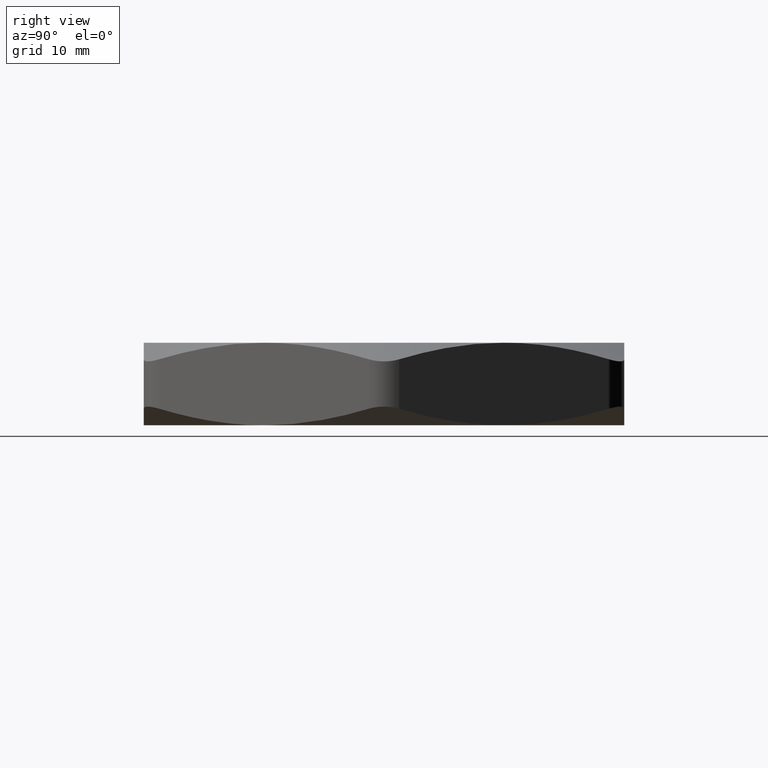
[diagram: clean part render]
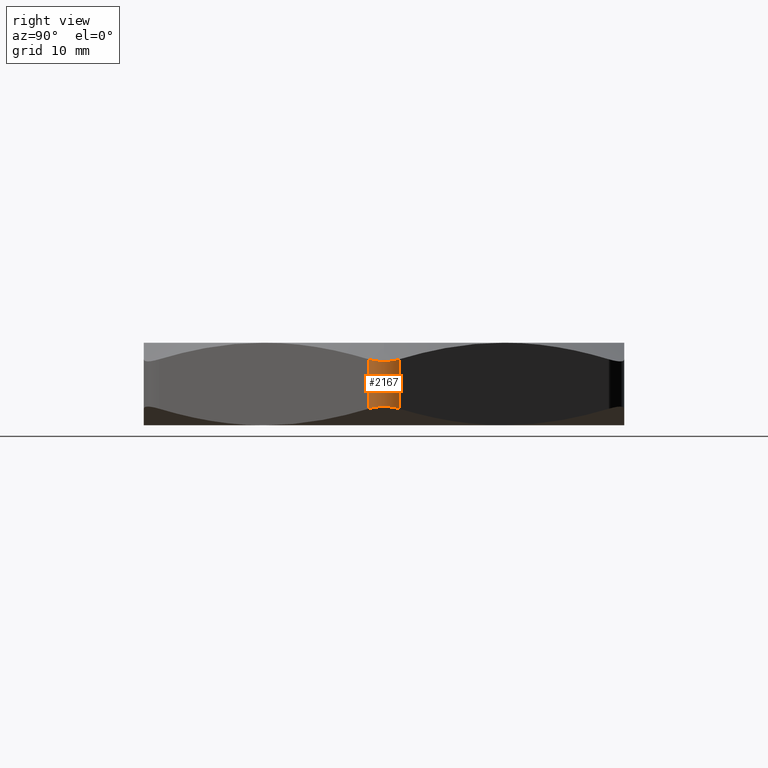
[diagram: same view with one face highlighted and labeled with its STEP entity id]
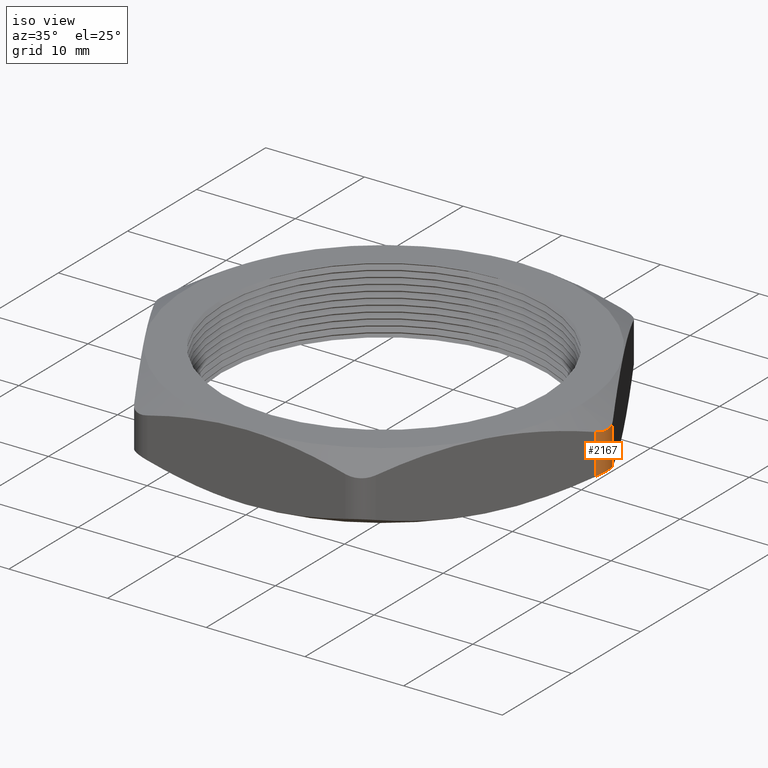
[diagram: same view with one face highlighted and labeled with its STEP entity id]
A machine part, right view. The second image highlights one B-rep face of the part: STEP entity #2167.
A second angle (iso view) of the same face is appended — the face is thin or edge-on in the first view.
In plain terms, the highlighted cylindrical surface (edge-blend (fillet) strip) has radius 2.54 mm, axis along (0, 0, -1).
Its self-contained STEP definition (entity closure, byte-faithful):
#210 = VERTEX_POINT ( 'NONE', #700 ) ;
#700 = CARTESIAN_POINT ( 'NONE',  ( 0.8775724091682313200, 0.05000000000000044000, 0.2157315925363599000 ) ) ;
#973 = DIRECTION ( 'NONE',  ( -1.000000000000000000, 0.0000000000000000000, 0.0000000000000000000 ) ) ;
#974 = DIRECTION ( 'NONE',  ( 0.0000000000000000000, 0.0000000000000000000, -1.000000000000000000 ) ) ;
#975 = AXIS2_PLACEMENT_3D ( 'NONE', #982, #974, #973 ) ;
#977 = CYLINDRICAL_SURFACE ( 'NONE', #975, 0.1000000000000000200 ) ;
#978 = FACE_OUTER_BOUND ( 'NONE', #2166, .T. ) ;
#982 = CARTESIAN_POINT ( 'NONE',  ( 0.7909698687897874800, 3.927031490892378300E-016, 0.2700000000000000200 ) ) ;
#1066 = VECTOR ( 'NONE', #1113, 39.37007874015748100 ) ;
#1067 = CARTESIAN_POINT ( 'NONE',  ( 0.8775724091682313200, 0.05000000000000039100, 0.2700000000000000200 ) ) ;
#1068 = LINE ( 'NONE', #1067, #1066 ) ;
#1113 = DIRECTION ( 'NONE',  ( 0.0000000000000000000, 0.0000000000000000000, -1.000000000000000000 ) ) ;
#1126 = CARTESIAN_POINT ( 'NONE',  ( 0.8775724091682313200, 0.05000000000000046800, 0.05426840746364009600 ) ) ;
#1331 = CARTESIAN_POINT ( 'NONE',  ( 0.8909698687897874600, -1.240048968236690900E-025, 0.2088182677282274000 ) ) ;
#1380 = CARTESIAN_POINT ( 'NONE',  ( 0.8909698687897874600, -1.240048968236690900E-025, 0.2088182677282274000 ) ) ;
#1381 = CARTESIAN_POINT ( 'NONE',  ( 0.8909698687897874600, -0.008806879945348422900, 0.2088182677282273400 ) ) ;
#1382 = CARTESIAN_POINT ( 'NONE',  ( 0.8897939868074767900, -0.01762949016165761600, 0.2094199691537208000 ) ) ;
#1383 = CARTESIAN_POINT ( 'NONE',  ( 0.8852131986293810800, -0.03457166478606027400, 0.2117760038160995700 ) ) ;
#1384 = CARTESIAN_POINT ( 'NONE',  ( 0.8818849756360923600, -0.04253041576664630400, 0.2134910747609157800 ) ) ;
#1385 = CARTESIAN_POINT ( 'NONE',  ( 0.8775724091682314300, -0.04999999999999948200, 0.2157315925363598700 ) ) ;
#1387 = B_SPLINE_CURVE_WITH_KNOTS ( 'NONE', 3,
 ( #1385, #1384, #1383, #1382, #1381, #1380 ),
 .UNSPECIFIED., .F., .F.,
 ( 4, 2, 4 ),
 ( 2.742838647325547800E-018, 0.0006699787930927566200, 0.001339957586185510600 ),
 .UNSPECIFIED. ) ;
#1466 = CARTESIAN_POINT ( 'NONE',  ( 0.8775724091682314300, -0.04999999999999962100, 0.05426840746364014500 ) ) ;
#1467 = CARTESIAN_POINT ( 'NONE',  ( 0.8818793095774492000, -0.04254022966809574400, 0.05650598153834317200 ) ) ;
#1468 = CARTESIAN_POINT ( 'NONE',  ( 0.8852649229527779200, -0.03441272181768798700, 0.05825062906240532200 ) ) ;
#1469 = CARTESIAN_POINT ( 'NONE',  ( 0.8897931010624972000, -0.01760004050213924400, 0.06057954541684237200 ) ) ;
#1470 = CARTESIAN_POINT ( 'NONE',  ( 0.8909773406225370800, -0.008706637020102919000, 0.06118556196029469700 ) ) ;
#1471 = CARTESIAN_POINT ( 'NONE',  ( 0.8909623240274410200, 0.008877434658951511400, 0.06117786520318012300 ) ) ;
#1472 = CARTESIAN_POINT ( 'NONE',  ( 0.8897825778630648100, 0.01768593177843860700, 0.06057417599127203100 ) ) ;
#1473 = CARTESIAN_POINT ( 'NONE',  ( 0.8852023806974060900, 0.03459736054747959700, 0.05821841903613206300 ) ) ;
#1474 = CARTESIAN_POINT ( 'NONE',  ( 0.8818780056899937500, 0.04254248806741545800, 0.05650530412663442400 ) ) ;
#1475 = CARTESIAN_POINT ( 'NONE',  ( 0.8775724091682313200, 0.05000000000000046800, 0.05426840746364009600 ) ) ;
#1479 = B_SPLINE_CURVE_WITH_KNOTS ( 'NONE', 3,
 ( #1475, #1474, #1473, #1472, #1471, #1470, #1469, #1468, #1467, #1466 ),
 .UNSPECIFIED., .F., .F.,
 ( 4, 2, 2, 2, 4 ),
 ( 1.318988870012550700E-018, 0.0006688959770690054300, 0.001337791954138009600, 0.002006687931207013900, 0.002675583908276017800 ),
 .UNSPECIFIED. ) ;
#1794 = B_SPLINE_CURVE_WITH_KNOTS ( 'NONE', 3,
 ( #1853, #1852, #1851, #1850, #1849, #1848 ),
 .UNSPECIFIED., .F., .F.,
 ( 4, 2, 4 ),
 ( 0.001339957586185510600, 0.002007770747230765400, 0.002675583908276020000 ),
 .UNSPECIFIED. ) ;
#1848 = CARTESIAN_POINT ( 'NONE',  ( 0.8775724091682313200, 0.05000000000000044000, 0.2157315925363599000 ) ) ;
#1849 = CARTESIAN_POINT ( 'NONE',  ( 0.8818723375206037900, 0.04255230562478610300, 0.2134976406707079500 ) ) ;
#1850 = CARTESIAN_POINT ( 'NONE',  ( 0.8852540718546960700, 0.03443884623816816800, 0.2117549647217512300 ) ) ;
#1851 = CARTESIAN_POINT ( 'NONE',  ( 0.8897819442848536900, 0.01765556043172954500, 0.2094261798733373600 ) ) ;
#1852 = CARTESIAN_POINT ( 'NONE',  ( 0.8909698687897874600, 0.008778412683929450600, 0.2088182677282272600 ) ) ;
#1853 = CARTESIAN_POINT ( 'NONE',  ( 0.8909698687897874600, -1.240048968236690900E-025, 0.2088182677282274000 ) ) ;
#1887 = CARTESIAN_POINT ( 'NONE',  ( 0.8775724091682314300, -0.04999999999999962100, 0.05426840746364014500 ) ) ;
#1889 = LINE ( 'NONE', #1935, #1934 ) ;
#1900 = CARTESIAN_POINT ( 'NONE',  ( 0.8775724091682314300, -0.04999999999999948200, 0.2157315925363598700 ) ) ;
#1933 = DIRECTION ( 'NONE',  ( 0.0000000000000000000, 0.0000000000000000000, 1.000000000000000000 ) ) ;
#1934 = VECTOR ( 'NONE', #1933, 39.37007874015748100 ) ;
#1935 = CARTESIAN_POINT ( 'NONE',  ( 0.8775724091682314300, -0.04999999999999960000, 0.2700000000000000200 ) ) ;
#2156 = ORIENTED_EDGE ( 'NONE', *, *, #2416, .F. ) ;
#2157 = ORIENTED_EDGE ( 'NONE', *, *, #2368, .F. ) ;
#2158 = ORIENTED_EDGE ( 'NONE', *, *, #2669, .F. ) ;
#2161 = ORIENTED_EDGE ( 'NONE', *, *, #2597, .F. ) ;
#2163 = ORIENTED_EDGE ( 'NONE', *, *, #2225, .F. ) ;
#2166 = EDGE_LOOP ( 'NONE', ( #2157, #2158, #2156, #2163, #2161 ) ) ;
#2167 = ADVANCED_FACE ( 'NONE', ( #978 ), #977, .T. ) ;
#2225 = EDGE_CURVE ( 'NONE', #210, #2243, #1068, .T. ) ;
#2243 = VERTEX_POINT ( 'NONE', #1126 ) ;
#2333 = VERTEX_POINT ( 'NONE', #1331 ) ;
#2368 = EDGE_CURVE ( 'NONE', #2661, #2333, #1387, .T. ) ;
#2416 = EDGE_CURVE ( 'NONE', #2243, #2667, #1479, .T. ) ;
#2597 = EDGE_CURVE ( 'NONE', #2333, #210, #1794, .T. ) ;
#2661 = VERTEX_POINT ( 'NONE', #1900 ) ;
#2667 = VERTEX_POINT ( 'NONE', #1887 ) ;
#2669 = EDGE_CURVE ( 'NONE', #2667, #2661, #1889, .T. ) ;